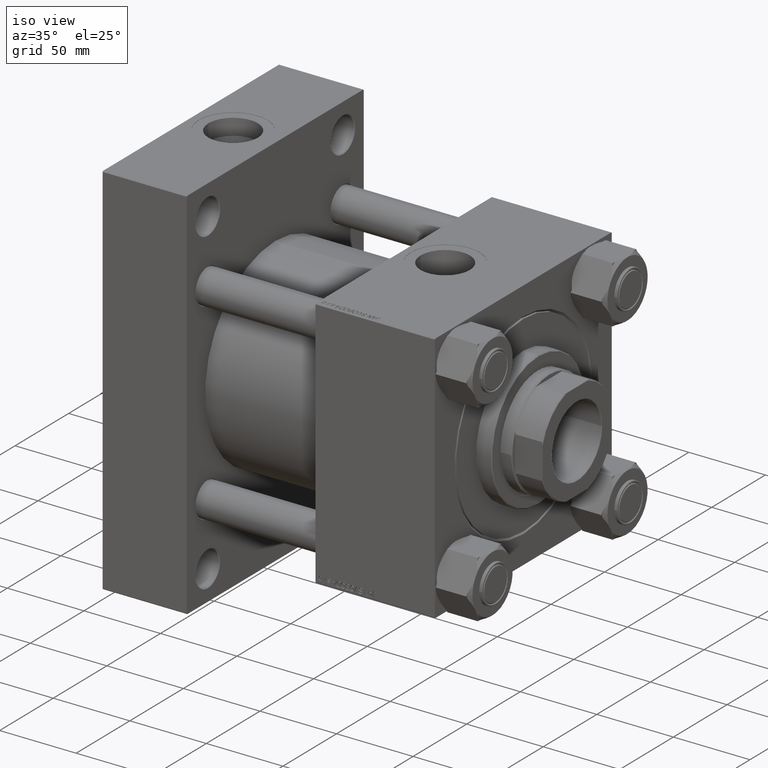
[diagram: clean part render]
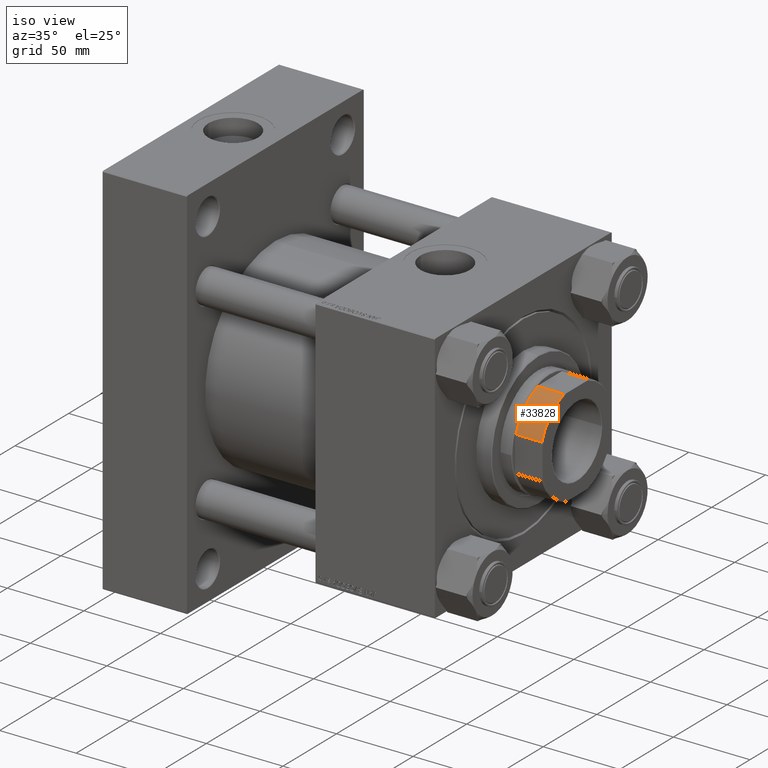
[diagram: same view with one face highlighted and labeled with its STEP entity id]
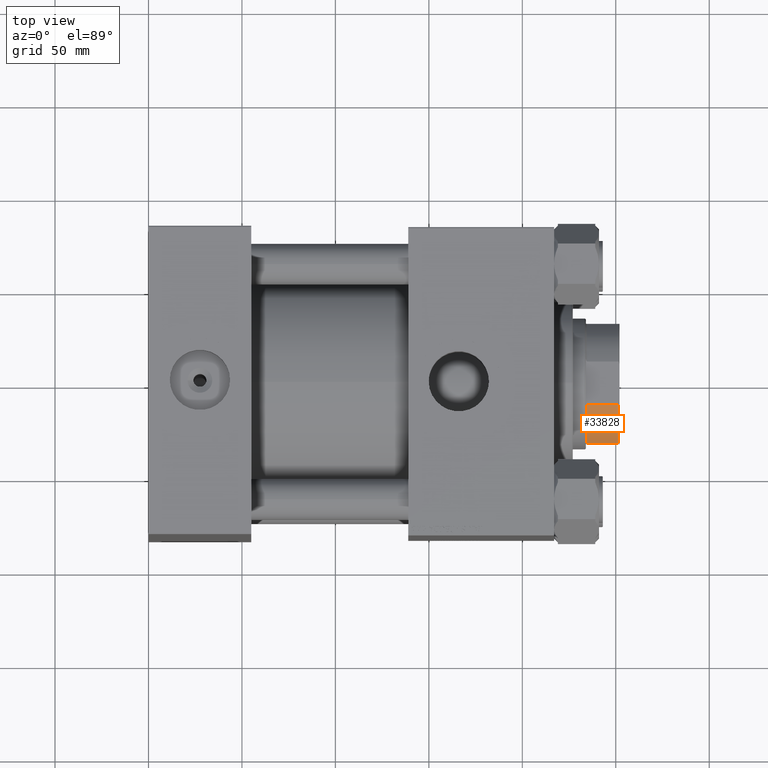
[diagram: same view with one face highlighted and labeled with its STEP entity id]
A machine part, iso view. The second image highlights one B-rep face of the part: STEP entity #33828.
A second angle (top view) of the same face is appended — the face is thin or edge-on in the first view.
In plain terms, the highlighted cylindrical surface (partial cylindrical patch) has radius 34 mm, axis along (1, 0, 0).
Its self-contained STEP definition (entity closure, byte-faithful):
#435 = CIRCLE ( 'NONE', #25773, 34.00000000000000000 ) ;
#1670 = VERTEX_POINT ( 'NONE', #39203 ) ;
#8193 = DIRECTION ( 'NONE',  ( -0.000000000000000000, -0.000000000000000000, 1.000000000000000000 ) ) ;
#9233 = LINE ( 'NONE', #17402, #15507 ) ;
#10515 = DIRECTION ( 'NONE',  ( -0.000000000000000000, -0.000000000000000000, -1.000000000000000000 ) ) ;
#11384 = ORIENTED_EDGE ( 'NONE', *, *, #17686, .T. ) ;
#12026 = LINE ( 'NONE', #34528, #19129 ) ;
#13899 = VERTEX_POINT ( 'NONE', #20831 ) ;
#15507 = VECTOR ( 'NONE', #44483, 1000.000000000000000 ) ;
#15774 = DIRECTION ( 'NONE',  ( 1.000000000000000000, 0.000000000000000000, 0.000000000000000000 ) ) ;
#16024 = DIRECTION ( 'NONE',  ( -0.000000000000000000, -0.000000000000000000, 1.000000000000000000 ) ) ;
#16275 = CYLINDRICAL_SURFACE ( 'NONE', #23318, 34.00000000000000000 ) ;
#16618 = EDGE_CURVE ( 'NONE', #1670, #46064, #23387, .T. ) ;
#16728 = CARTESIAN_POINT ( 'NONE',  ( 31.99999999999999289, -11.48912529307609098, 179.5000000000000284 ) ) ;
#16730 = ORIENTED_EDGE ( 'NONE', *, *, #49014, .F. ) ;
#17402 = CARTESIAN_POINT ( 'NONE',  ( 11.48912529307606256, -32.00000000000000000, -0.001000000000001000089 ) ) ;
#17686 = EDGE_CURVE ( 'NONE', #34166, #13899, #435, .T. ) ;
#19129 = VECTOR ( 'NONE', #8193, 1000.000000000000000 ) ;
#20831 = CARTESIAN_POINT ( 'NONE',  ( 11.48912529307606256, -32.00000000000000000, 196.4999999999996874 ) ) ;
#21784 = ORIENTED_EDGE ( 'NONE', *, *, #16618, .T. ) ;
#22941 = FACE_OUTER_BOUND ( 'NONE', #38946, .T. ) ;
#23318 = AXIS2_PLACEMENT_3D ( 'NONE', #27023, #16024, #15774 ) ;
#23387 = CIRCLE ( 'NONE', #36459, 34.00000000000000000 ) ;
#25773 = AXIS2_PLACEMENT_3D ( 'NONE', #30171, #10515, #45754 ) ;
#27023 = CARTESIAN_POINT ( 'NONE',  ( 0.000000000000000000, 0.000000000000000000, -0.001000000000001000089 ) ) ;
#27956 = CARTESIAN_POINT ( 'NONE',  ( 31.99999999999999289, -11.48912529307609098, 196.4999999999996874 ) ) ;
#28325 = ORIENTED_EDGE ( 'NONE', *, *, #30230, .T. ) ;
#30171 = CARTESIAN_POINT ( 'NONE',  ( 0.000000000000000000, 0.000000000000000000, 196.4999999999997442 ) ) ;
#30230 = EDGE_CURVE ( 'NONE', #46064, #34166, #12026, .T. ) ;
#33828 = ADVANCED_FACE ( 'NONE', ( #22941 ), #16275, .T. ) ;
#34166 = VERTEX_POINT ( 'NONE', #27956 ) ;
#34528 = CARTESIAN_POINT ( 'NONE',  ( 31.99999999999999289, -11.48912529307609098, -0.001000000000001000089 ) ) ;
#34752 = CARTESIAN_POINT ( 'NONE',  ( 0.000000000000000000, 0.000000000000000000, 179.5000000000000284 ) ) ;
#35487 = DIRECTION ( 'NONE',  ( -0.000000000000000000, -0.000000000000000000, 1.000000000000000000 ) ) ;
#35745 = DIRECTION ( 'NONE',  ( -1.000000000000000000, 0.000000000000000000, 0.000000000000000000 ) ) ;
#36459 = AXIS2_PLACEMENT_3D ( 'NONE', #34752, #35487, #35745 ) ;
#38946 = EDGE_LOOP ( 'NONE', ( #28325, #11384, #16730, #21784 ) ) ;
#39203 = CARTESIAN_POINT ( 'NONE',  ( 11.48912529307606256, -32.00000000000000000, 179.4999999999999716 ) ) ;
#44483 = DIRECTION ( 'NONE',  ( -0.000000000000000000, -0.000000000000000000, 1.000000000000000000 ) ) ;
#45754 = DIRECTION ( 'NONE',  ( 1.000000000000000000, 0.000000000000000000, 0.000000000000000000 ) ) ;
#46064 = VERTEX_POINT ( 'NONE', #16728 ) ;
#49014 = EDGE_CURVE ( 'NONE', #1670, #13899, #9233, .T. ) ;